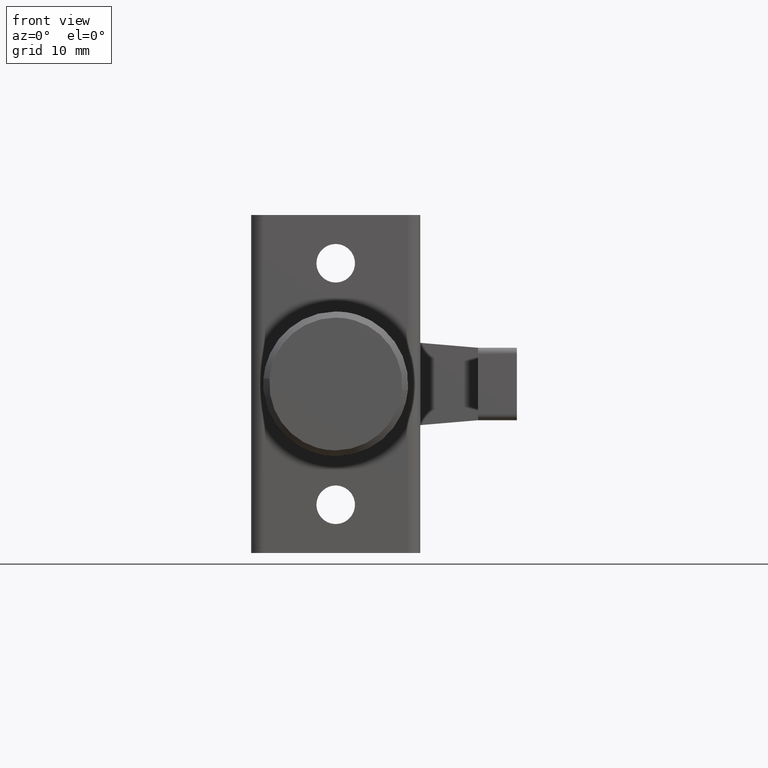
[diagram: clean part render]
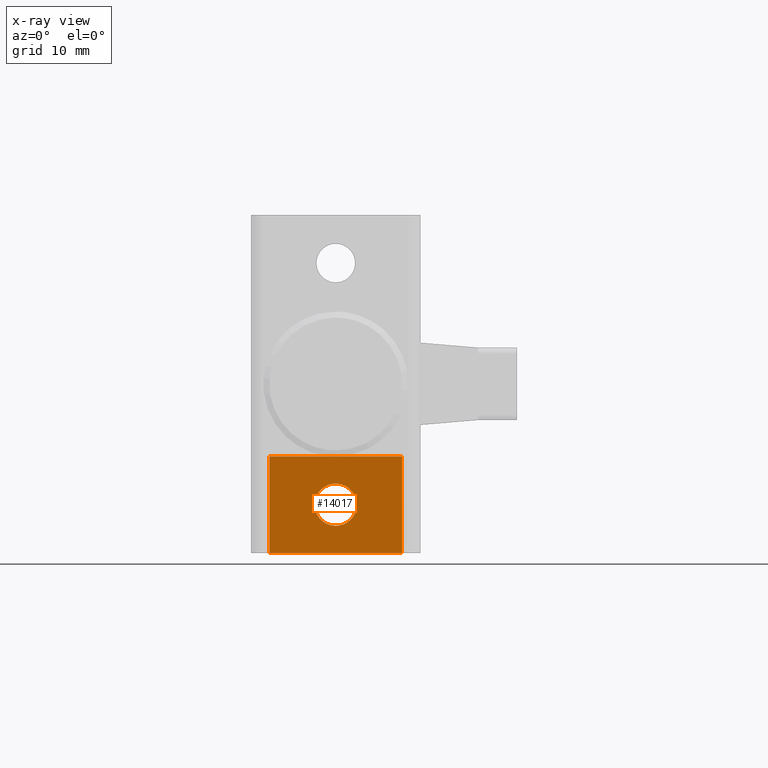
[diagram: x-ray — body ghosted, one internal face saturated and labeled with its STEP entity id]
A machine part, front view, then the same camera in x-ray: the body is ghosted and one INTERNAL B-rep face — a face not visible from any outside direction — is saturated and labeled: STEP entity #14017.
In plain terms, the highlighted face is a freeform B-spline surface patch.
Its self-contained STEP definition (entity closure, byte-faithful):
#12882=CARTESIAN_POINT('',(1.009999999999954,-1.737766671129152,-9.793440089289561));
#12883=VERTEX_POINT('',#12882);
#12884=CARTESIAN_POINT('',(1.009999999999954,0.0,-11.750000000000000));
#12885=VERTEX_POINT('',#12884);
#12886=CARTESIAN_POINT('',(1.009999999999954,-1.737766671129152,-9.793440089289561));
#12887=CARTESIAN_POINT('',(1.009999999999954,-1.750000000000000,-9.896357790547402));
#12888=CARTESIAN_POINT('',(1.009999999999954,-1.750000000000000,-10.0));
#12889=CARTESIAN_POINT('',(1.009999999999954,-1.750000000000000,-11.750000000000004));
#12890=CARTESIAN_POINT('',(1.009999999999954,0.0,-11.750000000000000));
#12898=(BOUNDED_CURVE()B_SPLINE_CURVE(2,(#12886,#12887,#12888,#12889,#12890),.UNSPECIFIED.,.F.,.U.)B_SPLINE_CURVE_WITH_KNOTS((3,2,3),(0.729562473503758,0.750000000000000,1.0),.UNSPECIFIED.)CURVE()GEOMETRIC_REPRESENTATION_ITEM()RATIONAL_B_SPLINE_CURVE((0.956026754164588,0.976055948319722,1.0,0.707106781186547,1.0))REPRESENTATION_ITEM(''));
#12899=EDGE_CURVE('',#12883,#12885,#12898,.T.);
#12940=CARTESIAN_POINT('',(1.009999999999954,1.746735897233195,-10.106834944268931));
#12941=VERTEX_POINT('',#12940);
#12947=CARTESIAN_POINT('',(1.009999999999954,0.0,-11.750000000000000));
#12948=CARTESIAN_POINT('',(1.009999999999954,1.646235616928349,-11.750000000000005));
#12949=CARTESIAN_POINT('',(1.009999999999954,1.746735897233194,-10.106834944268932));
#12957=(BOUNDED_CURVE()B_SPLINE_CURVE(2,(#12947,#12948,#12949),.UNSPECIFIED.,.F.,.U.)B_SPLINE_CURVE_WITH_KNOTS((3,3),(0.0,0.239332962225584),.UNSPECIFIED.)CURVE()GEOMETRIC_REPRESENTATION_ITEM()RATIONAL_B_SPLINE_CURVE((1.0,0.719603993302362,0.976072041638086))REPRESENTATION_ITEM(''));
#12958=EDGE_CURVE('',#12885,#12941,#12957,.T.);
#12981=CARTESIAN_POINT('',(1.009999999999954,0.0,-8.250000000000000));
#12982=VERTEX_POINT('',#12981);
#12983=CARTESIAN_POINT('',(1.009999999999954,0.0,-8.250000000000000));
#12984=CARTESIAN_POINT('',(1.009999999999954,-1.554305420304799,-8.250000000000000));
#12985=CARTESIAN_POINT('',(1.009999999999954,-1.737766671129152,-9.793440089289561));
#12993=(BOUNDED_CURVE()B_SPLINE_CURVE(2,(#12983,#12984,#12985),.UNSPECIFIED.,.F.,.U.)B_SPLINE_CURVE_WITH_KNOTS((3,3),(0.500000000000000,0.729562473503757),.UNSPECIFIED.)CURVE()GEOMETRIC_REPRESENTATION_ITEM()RATIONAL_B_SPLINE_CURVE((1.0,0.731050832866827,0.956026754164587))REPRESENTATION_ITEM(''));
#12994=EDGE_CURVE('',#12982,#12883,#12993,.T.);
#12996=CARTESIAN_POINT('',(1.009999999999954,1.746735897233194,-10.106834944268932));
#12997=CARTESIAN_POINT('',(1.009999999999954,1.750000000000000,-10.053467335855697));
#12998=CARTESIAN_POINT('',(1.009999999999954,1.750000000000000,-10.0));
#12999=CARTESIAN_POINT('',(1.009999999999954,1.750000000000000,-8.250000000000000));
#13000=CARTESIAN_POINT('',(1.009999999999954,0.0,-8.250000000000000));
#13008=(BOUNDED_CURVE()B_SPLINE_CURVE(2,(#12996,#12997,#12998,#12999,#13000),.UNSPECIFIED.,.F.,.U.)B_SPLINE_CURVE_WITH_KNOTS((3,2,3),(0.239332962225584,0.250000000000000,0.500000000000000),.UNSPECIFIED.)CURVE()GEOMETRIC_REPRESENTATION_ITEM()RATIONAL_B_SPLINE_CURVE((0.976072041638086,0.987502787884186,1.0,0.707106781186547,1.0))REPRESENTATION_ITEM(''));
#13009=EDGE_CURVE('',#12941,#12982,#13008,.T.);
#13976=CARTESIAN_POINT('',(1.010000000000000,-6.049449978679866,-5.600400015505551));
#13977=CARTESIAN_POINT('',(1.010000000000000,-6.049449978679865,-14.399600199071170));
#13978=CARTESIAN_POINT('',(1.010000000000000,6.049450273722857,-5.600400015505551));
#13979=CARTESIAN_POINT('',(1.010000000000000,6.049450273722857,-14.399600199071170));
#13980=B_SPLINE_SURFACE_WITH_KNOTS('',1,1,((#13976,#13978),(#13977,#13979)),.UNSPECIFIED.,.F.,.F.,.U.,(2,2),(2,2),(0.0,8.799200183565620),(0.0,12.098900252402720),.UNSPECIFIED.);
#13981=CARTESIAN_POINT('',(1.010000000000000,5.500000000000000,-14.0));
#13982=VERTEX_POINT('',#13981);
#13983=CARTESIAN_POINT('',(1.010000000000000,5.500000000000000,-6.0));
#13984=VERTEX_POINT('',#13983);
#13985=CARTESIAN_POINT('',(1.010000000000000,5.500000000000000,-14.0));
#13986=CARTESIAN_POINT('',(1.010000000000000,5.500000000000000,-6.0));
#13987=QUASI_UNIFORM_CURVE('',1,(#13985,#13986),.UNSPECIFIED.,.F.,.U.);
#13988=EDGE_CURVE('',#13982,#13984,#13987,.T.);
#13989=ORIENTED_EDGE('',*,*,#13988,.F.);
#13990=CARTESIAN_POINT('',(1.010000000000000,-5.500000000000000,-14.0));
#13991=VERTEX_POINT('',#13990);
#13992=CARTESIAN_POINT('',(1.010000000000000,-5.500000000000000,-14.0));
#13993=CARTESIAN_POINT('',(1.010000000000000,5.500000000000000,-14.0));
#13994=QUASI_UNIFORM_CURVE('',1,(#13992,#13993),.UNSPECIFIED.,.F.,.U.);
#13995=EDGE_CURVE('',#13991,#13982,#13994,.T.);
#13996=ORIENTED_EDGE('',*,*,#13995,.F.);
#13997=CARTESIAN_POINT('',(1.010000000000000,-5.500000000000000,-6.0));
#13998=VERTEX_POINT('',#13997);
#13999=CARTESIAN_POINT('',(1.010000000000000,-5.500000000000000,-14.0));
#14000=CARTESIAN_POINT('',(1.010000000000000,-5.500000000000000,-6.0));
#14001=QUASI_UNIFORM_CURVE('',1,(#13999,#14000),.UNSPECIFIED.,.F.,.U.);
#14002=EDGE_CURVE('',#13991,#13998,#14001,.T.);
#14003=ORIENTED_EDGE('',*,*,#14002,.T.);
#14004=CARTESIAN_POINT('',(1.010000000000000,5.500000000000000,-6.0));
#14005=CARTESIAN_POINT('',(1.010000000000000,-5.500000000000000,-6.0));
#14006=QUASI_UNIFORM_CURVE('',1,(#14004,#14005),.UNSPECIFIED.,.F.,.U.);
#14007=EDGE_CURVE('',#13984,#13998,#14006,.T.);
#14008=ORIENTED_EDGE('',*,*,#14007,.F.);
#14009=EDGE_LOOP('',(#13989,#13996,#14003,#14008));
#14010=FACE_OUTER_BOUND('',#14009,.T.);
#14011=ORIENTED_EDGE('',*,*,#12958,.T.);
#14012=ORIENTED_EDGE('',*,*,#13009,.T.);
#14013=ORIENTED_EDGE('',*,*,#12994,.T.);
#14014=ORIENTED_EDGE('',*,*,#12899,.T.);
#14015=EDGE_LOOP('',(#14011,#14012,#14013,#14014));
#14016=FACE_BOUND('',#14015,.T.);
#14017=ADVANCED_FACE('',(#14010,#14016),#13980,.F.);